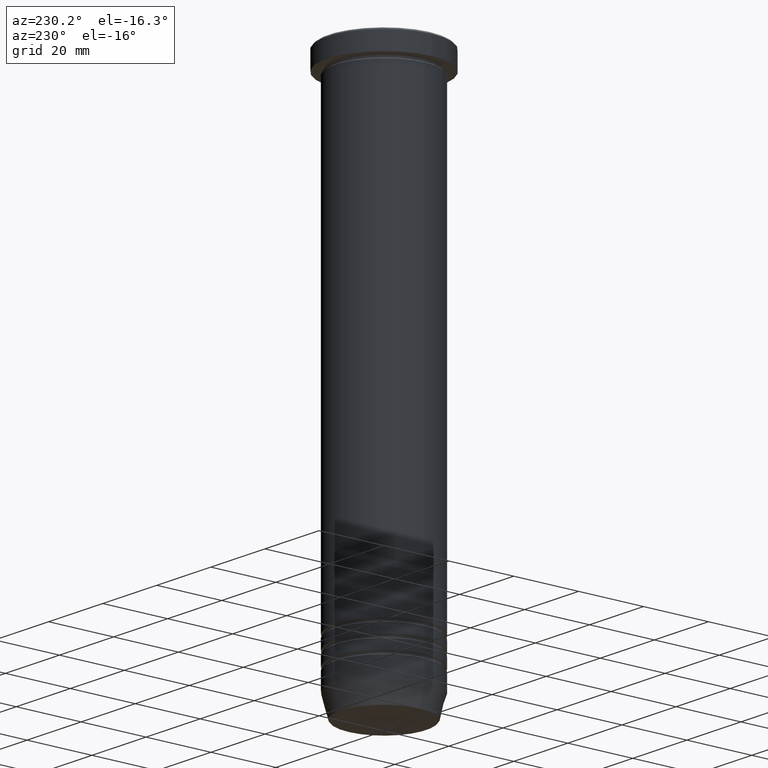
[diagram: clean part render]
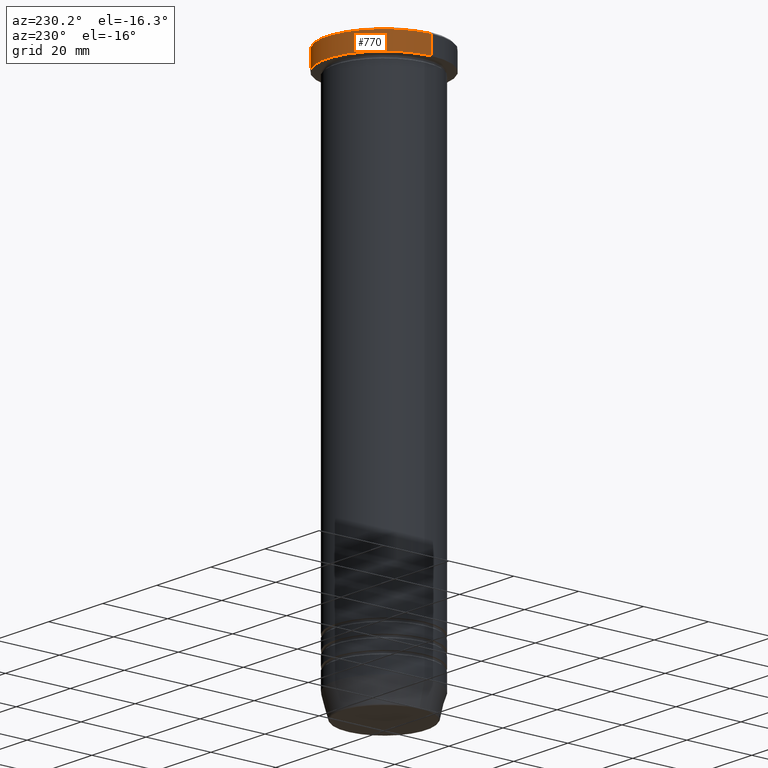
[diagram: same view with one face highlighted and labeled with its STEP entity id]
A machine part, auxiliary view. The second image highlights one B-rep face of the part: STEP entity #770.
In plain terms, the highlighted cylindrical surface (partial cylindrical patch) has radius 17.5 mm, axis along (-0, -0, 1).
Its self-contained STEP definition (entity closure, byte-faithful):
#15 = ORIENTED_EDGE ( 'NONE', *, *, #604, .F. ) ;
#37 = VERTEX_POINT ( 'NONE', #194 ) ;
#110 = VERTEX_POINT ( 'NONE', #569 ) ;
#142 = CYLINDRICAL_SURFACE ( 'NONE', #997, 17.50000000000000000 ) ;
#147 = DIRECTION ( 'NONE',  ( 1.000000000000000000, 0.000000000000000000, 0.000000000000000000 ) ) ;
#157 = AXIS2_PLACEMENT_3D ( 'NONE', #165, #597, #426 ) ;
#165 = CARTESIAN_POINT ( 'NONE',  ( 0.000000000000000000, 0.000000000000000000, -0.5000000000000073275 ) ) ;
#189 = AXIS2_PLACEMENT_3D ( 'NONE', #606, #960, #954 ) ;
#194 = CARTESIAN_POINT ( 'NONE',  ( 17.50000000000000000, 0.000000000000000000, -0.5000000000000073275 ) ) ;
#244 = VERTEX_POINT ( 'NONE', #767 ) ;
#249 = CIRCLE ( 'NONE', #189, 17.50000000000000000 ) ;
#314 = DIRECTION ( 'NONE',  ( -0.000000000000000000, -0.000000000000000000, 1.000000000000000000 ) ) ;
#340 = ORIENTED_EDGE ( 'NONE', *, *, #725, .T. ) ;
#358 = LINE ( 'NONE', #713, #511 ) ;
#426 = DIRECTION ( 'NONE',  ( 1.000000000000000000, 0.000000000000000000, 0.000000000000000000 ) ) ;
#494 = VERTEX_POINT ( 'NONE', #577 ) ;
#511 = VECTOR ( 'NONE', #970, 1000.000000000000000 ) ;
#543 = CIRCLE ( 'NONE', #157, 17.50000000000000000 ) ;
#547 = EDGE_LOOP ( 'NONE', ( #768, #984, #340, #15 ) ) ;
#569 = CARTESIAN_POINT ( 'NONE',  ( -17.50000000000000000, 2.143131898507868248E-15, -5.999999999999999112 ) ) ;
#577 = CARTESIAN_POINT ( 'NONE',  ( -17.50000000000000000, 2.143131898507868248E-15, -0.5000000000000073275 ) ) ;
#597 = DIRECTION ( 'NONE',  ( 0.000000000000000000, 0.000000000000000000, -1.000000000000000000 ) ) ;
#604 = EDGE_CURVE ( 'NONE', #244, #37, #627, .T. ) ;
#606 = CARTESIAN_POINT ( 'NONE',  ( 0.000000000000000000, 0.000000000000000000, -5.999999999999999112 ) ) ;
#627 = LINE ( 'NONE', #985, #1013 ) ;
#690 = FACE_OUTER_BOUND ( 'NONE', #547, .T. ) ;
#713 = CARTESIAN_POINT ( 'NONE',  ( -17.50000000000000000, 2.143131898507868248E-15, 0.000000000000000000 ) ) ;
#725 = EDGE_CURVE ( 'NONE', #494, #37, #543, .T. ) ;
#739 = EDGE_CURVE ( 'NONE', #244, #110, #249, .T. ) ;
#767 = CARTESIAN_POINT ( 'NONE',  ( 17.50000000000000000, 0.000000000000000000, -5.999999999999999112 ) ) ;
#768 = ORIENTED_EDGE ( 'NONE', *, *, #739, .T. ) ;
#770 = ADVANCED_FACE ( 'NONE', ( #690 ), #142, .T. ) ;
#949 = EDGE_CURVE ( 'NONE', #110, #494, #358, .T. ) ;
#954 = DIRECTION ( 'NONE',  ( 1.000000000000000000, 0.000000000000000000, 0.000000000000000000 ) ) ;
#960 = DIRECTION ( 'NONE',  ( -0.000000000000000000, -0.000000000000000000, 1.000000000000000000 ) ) ;
#970 = DIRECTION ( 'NONE',  ( -0.000000000000000000, -0.000000000000000000, 1.000000000000000000 ) ) ;
#984 = ORIENTED_EDGE ( 'NONE', *, *, #949, .T. ) ;
#985 = CARTESIAN_POINT ( 'NONE',  ( 17.50000000000000000, 0.000000000000000000, 0.000000000000000000 ) ) ;
#997 = AXIS2_PLACEMENT_3D ( 'NONE', #1116, #1018, #147 ) ;
#1013 = VECTOR ( 'NONE', #314, 1000.000000000000000 ) ;
#1018 = DIRECTION ( 'NONE',  ( -0.000000000000000000, -0.000000000000000000, 1.000000000000000000 ) ) ;
#1116 = CARTESIAN_POINT ( 'NONE',  ( 0.000000000000000000, 0.000000000000000000, 0.000000000000000000 ) ) ;